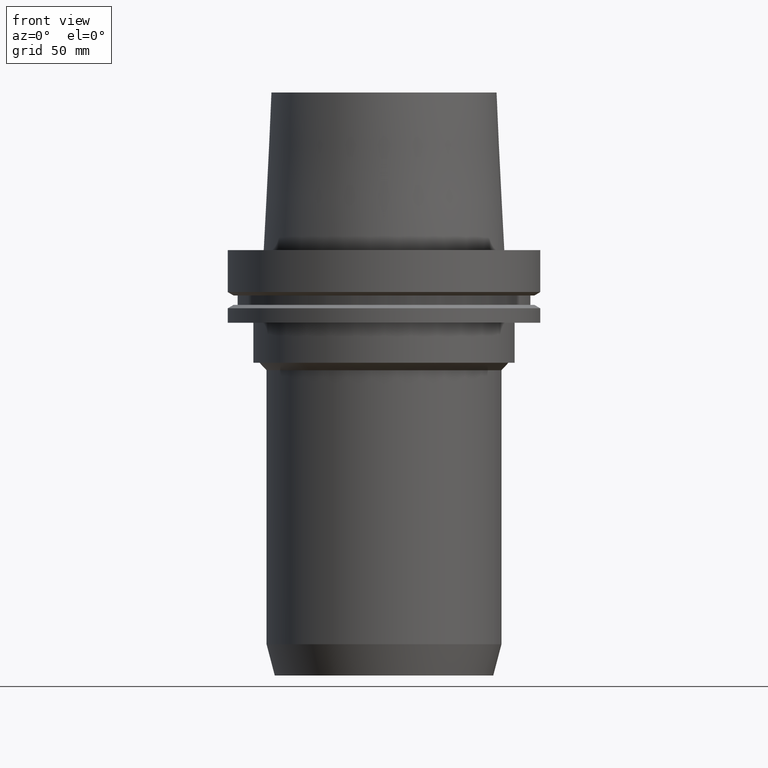
[diagram: clean part render]
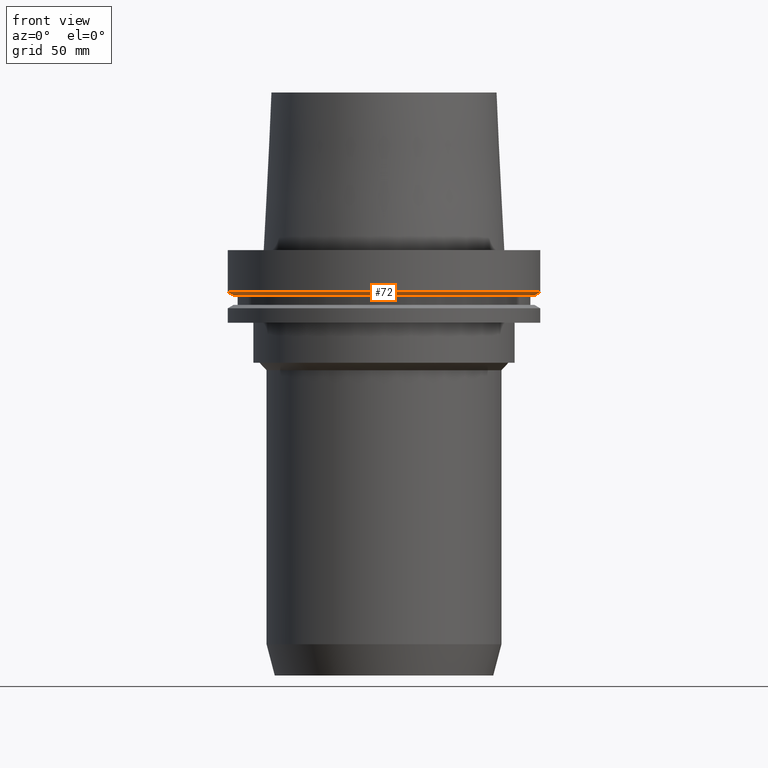
[diagram: same view with one face highlighted and labeled with its STEP entity id]
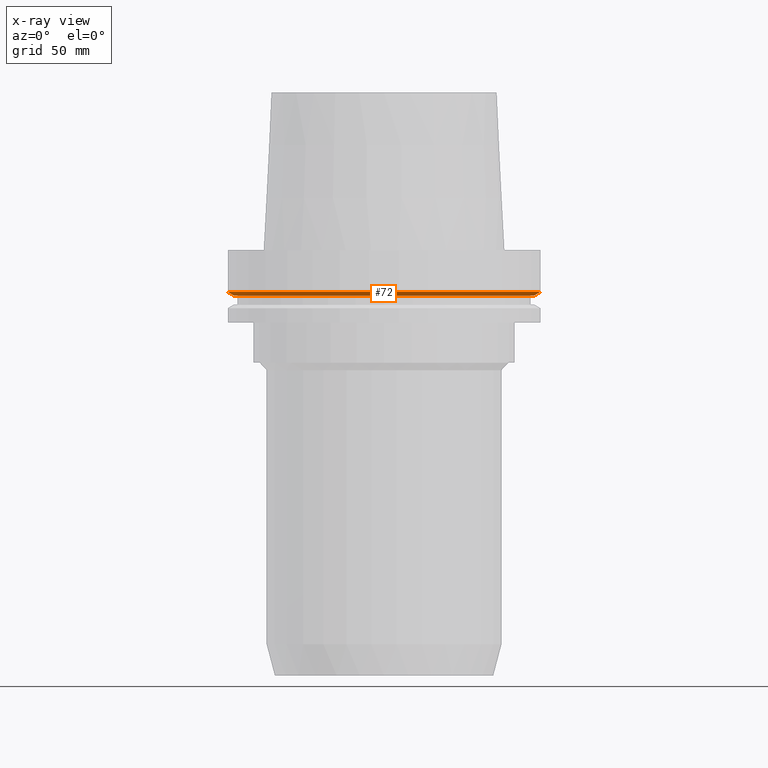
[diagram: x-ray of the same camera — body ghosted, the highlighted face saturated]
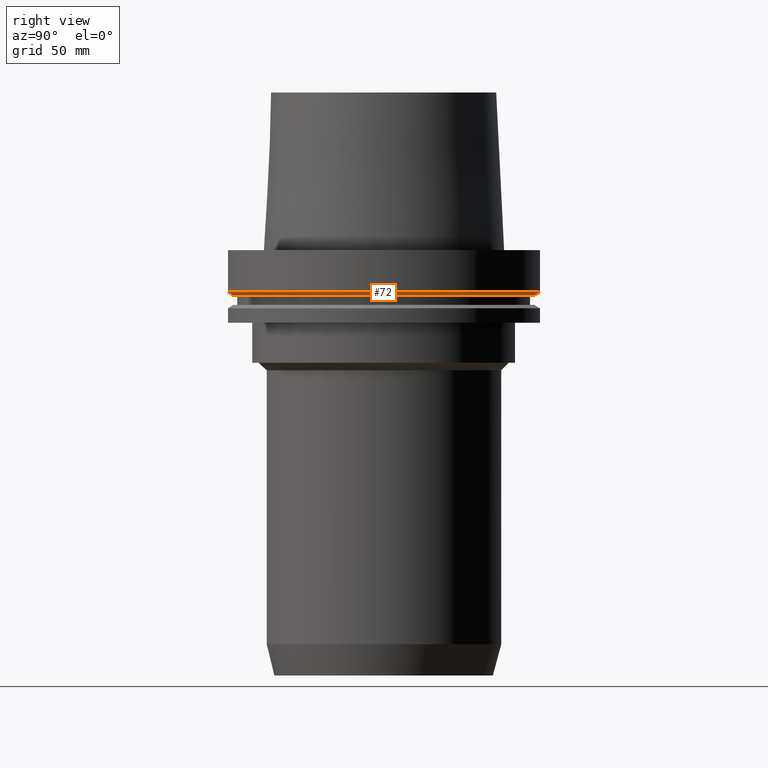
[diagram: same view with one face highlighted and labeled with its STEP entity id]
A machine part, front view. The second image highlights one B-rep face of the part: STEP entity #72.
The next image is the same camera in x-ray: the body ghosted, the highlighted face saturated — about 0% of this face is hidden behind the body in this view.
A second angle (right view) of the same face is appended — the face is thin or edge-on in the first view.
In plain terms, the highlighted conical surface has half-angle 60 deg.
Its self-contained STEP definition (entity closure, byte-faithful):
#72=ADVANCED_FACE('Unnamed[1]',(#181,#182),#183,.T.);
#89=EDGE_CURVE('Unnamed[1]',#209,#209,#210,.T.);
#137=EDGE_CURVE('Unnamed[1]',#283,#283,#284,.T.);
#181=FACE_BOUND('',#327,.T.);
#182=FACE_BOUND('',#328,.T.);
#183=CONICAL_SURFACE('',#329,61.3112976320956,1.04719755119668);
#209=VERTEX_POINT('',#361);
#210=CIRCLE('',#362,62.5);
#283=VERTEX_POINT('',#454);
#284=CIRCLE('',#455,60.1225952641912);
#327=EDGE_LOOP('',(#491));
#328=EDGE_LOOP('',(#492));
#329=AXIS2_PLACEMENT_3D('',#493,#494,#495);
#361=CARTESIAN_POINT('',(1.02578894188644E-015,62.5,-16.7524047358084));
#362=AXIS2_PLACEMENT_3D('',#525,#526,#527);
#454=CARTESIAN_POINT('',(1.10983616172729E-015,60.1225952641912,-18.1250000000001));
#455=AXIS2_PLACEMENT_3D('',#604,#605,#606);
#491=ORIENTED_EDGE('',*,*,#137,.F.);
#492=ORIENTED_EDGE('',*,*,#89,.T.);
#493=CARTESIAN_POINT('',(1.06781255180686E-015,2.13562510361373E-015,-17.4387023679042));
#494=DIRECTION('',(-6.12323399573676E-017,-1.22464679914735E-016,1.0));
#495=DIRECTION('',(-1.23259516440783E-032,1.0,1.22464679914735E-016));
#525=CARTESIAN_POINT('',(1.02578894188644E-015,2.05157788377287E-015,-16.7524047358084));
#526=DIRECTION('',(6.12323399573676E-017,1.22464679914735E-016,-1.0));
#527=DIRECTION('',(-1.23259516440783E-032,1.0,1.22464679914735E-016));
#604=CARTESIAN_POINT('',(1.10983616172729E-015,2.21967232345459E-015,-18.1250000000001));
#605=DIRECTION('',(6.12323399573677E-017,1.22464679914735E-016,-1.0));
#606=DIRECTION('',(-1.23259516440783E-032,1.0,1.22464679914735E-016));